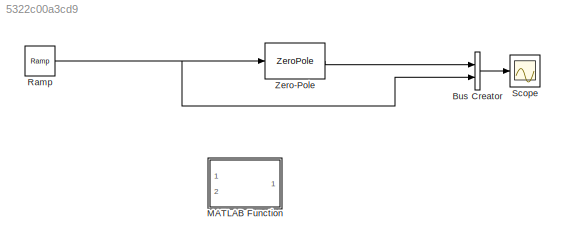
MODEL slx_5322c00a3cd9
KIND model
BLOCK [BusCreator] Bus Creator
  DisplayOption = bar
  Inputs = 2
  Ports = [2, 1]
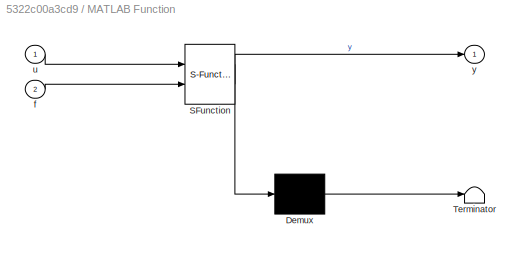
BLOCK [SubSystem] MATLAB Function
  ErrorFcn = Stateflow.Translate.translate
  PermitHierarchicalResolution = ExplicitOnly
  Ports = [2, 1]
  RequestExecContextInheritance = off
  SFBlockType = MATLAB Function
  TreatAsAtomicUnit = on
BLOCK [Demux] MATLAB Function/ Demux 
  Outputs = 1
  Ports = [1, 1]
BLOCK [S-Function] MATLAB Function/ SFunction 
  EnableBusSupport = off
  FunctionName = sf_sfun
  PortCounts = [2 2]
  Ports = [2, 2]
  Tag = Stateflow S-Function func_sim 2
BLOCK [Terminator] MATLAB Function/ Terminator 
BLOCK [Inport] MATLAB Function/f
  IconDisplay = Port number
  Port = 2
BLOCK [Inport] MATLAB Function/u
  IconDisplay = Port number
BLOCK [Outport] MATLAB Function/y
  IconDisplay = Port number
BLOCK [Reference] Ramp  REF=simulink/Sources/Ramp
  Ports = [0, 1]
  SourceBlock = simulink/Sources/Ramp
  SourceType = Ramp
  VectorParams1D = on
  X0 = 0
  slope = 1
  start = 0
BLOCK [Scope] Scope
  DataFormat = StructureWithTime
  Floating = off
  NumInputPorts = 1
  Ports = [1]
  SampleTime = 0
  ShowLegends = off
BLOCK [ZeroPole] Zero-Pole
  Gain = [1/10]
  Poles = [-1/20]
  Zeros = []
LINE Bus Creator:1 -> Scope:1
NET Ramp:1 -> Bus Creator:2, Zero-Pole:1
LINE Zero-Pole:1 -> Bus Creator:1
note: NET lines group one-source signal fan-out (src -> all destinations, sorted); 1:1 wires keep LINE
